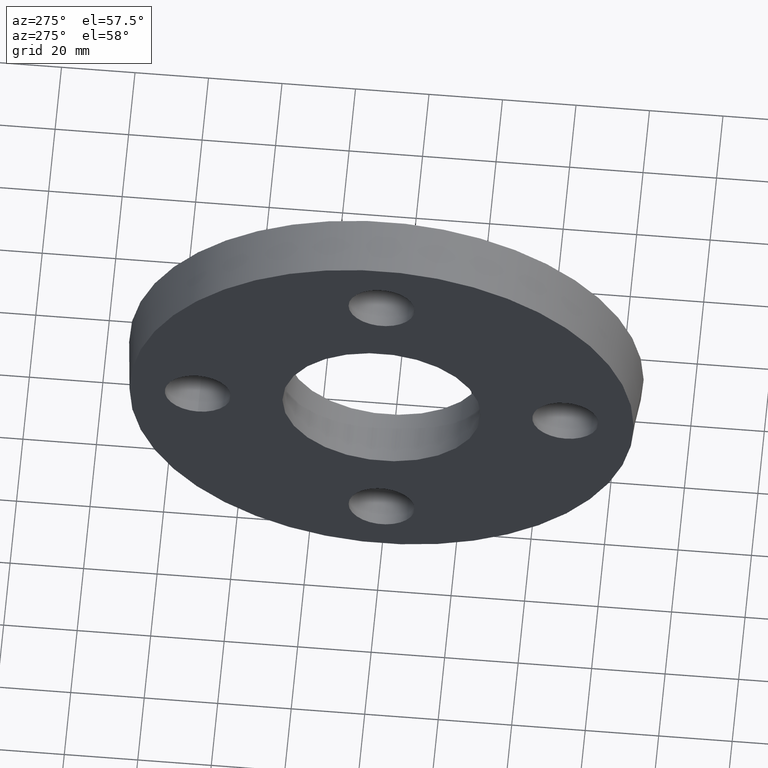
[diagram: clean part render]
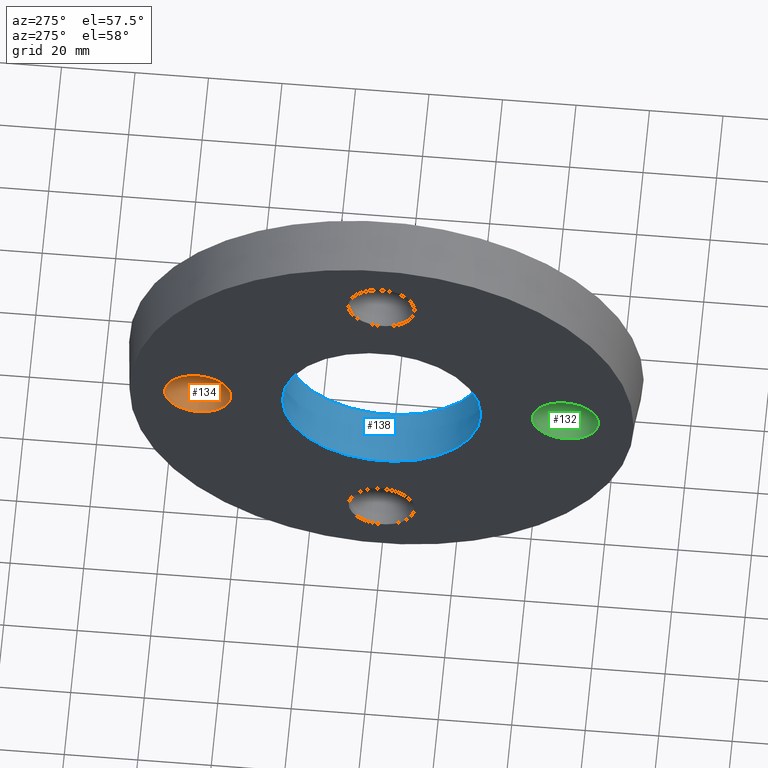
[diagram: same view with three faces highlighted in distinct colors, each labeled with its STEP entity id]
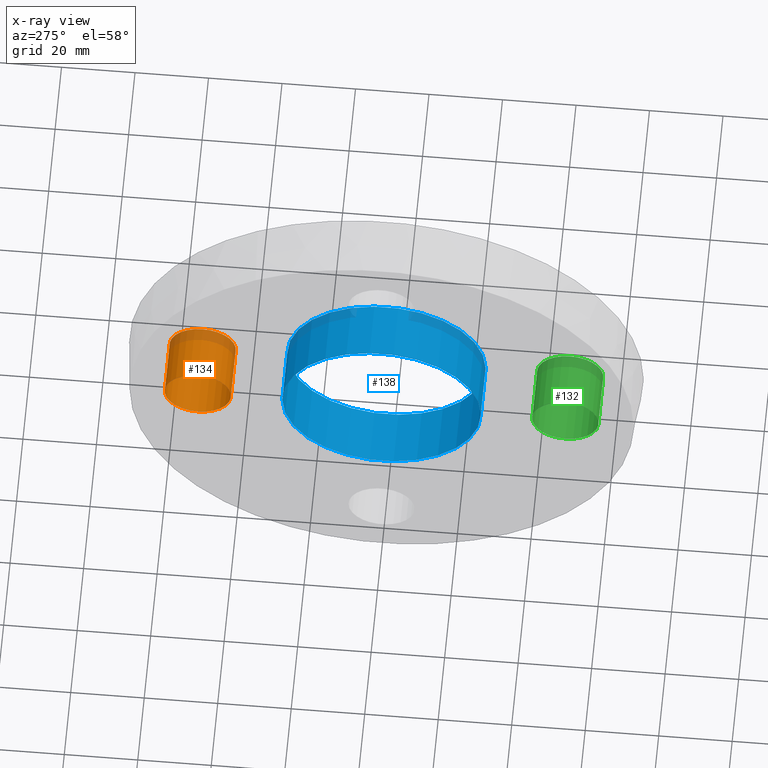
[diagram: x-ray of the same camera — body ghosted, the three highlighted faces saturated]
A machine part, auxiliary view with three faces highlighted in distinct colors.
The next image is the same camera in x-ray (body ghosted, the three faces saturated) — at least one of them is partly hidden behind the body in this view.
Their STEP definitions:

[orange] entity #134 — the highlighted cylindrical surface (bore or boss wall) has radius 9 mm, axis along (-1, 0, 0).
#21=FACE_BOUND('',#49,.T.);
#37=FACE_OUTER_BOUND('',#48,.T.);
#48=EDGE_LOOP('',(#108));
#49=EDGE_LOOP('',(#109));
#72=CIRCLE('',#151,9.);
#73=CIRCLE('',#152,9.);
#84=VERTEX_POINT('',#220);
#85=VERTEX_POINT('',#222);
#96=EDGE_CURVE('',#84,#84,#72,.T.);
#97=EDGE_CURVE('',#85,#85,#73,.T.);
#108=ORIENTED_EDGE('',*,*,#96,.F.);
#109=ORIENTED_EDGE('',*,*,#97,.F.);
#129=CYLINDRICAL_SURFACE('',#150,9.);
#134=ADVANCED_FACE('',(#37,#21),#129,.F.);
#150=AXIS2_PLACEMENT_3D('',#219,#181,#182);
#151=AXIS2_PLACEMENT_3D('',#221,#183,#184);
#152=AXIS2_PLACEMENT_3D('',#223,#185,#186);
#181=DIRECTION('center_axis',(-1.,0.,0.));
#182=DIRECTION('ref_axis',(0.,0.,1.));
#183=DIRECTION('center_axis',(1.,0.,0.));
#184=DIRECTION('ref_axis',(0.,0.,1.));
#185=DIRECTION('center_axis',(-1.,0.,0.));
#186=DIRECTION('ref_axis',(0.,0.,1.));
#219=CARTESIAN_POINT('Origin',(7.5,50.,0.));
#220=CARTESIAN_POINT('',(-7.5,50.,-9.));
#221=CARTESIAN_POINT('Origin',(-7.5,50.,0.));
#222=CARTESIAN_POINT('',(7.5,50.,-9.));
#223=CARTESIAN_POINT('Origin',(7.5,50.,0.));

[blue] entity #138 — the highlighted cylindrical surface (bore or boss wall) has radius 27 mm, axis along (-1, 0, 0).
#33=FACE_BOUND('',#65,.T.);
#41=FACE_OUTER_BOUND('',#64,.T.);
#64=EDGE_LOOP('',(#124));
#65=EDGE_LOOP('',(#125));
#75=CIRCLE('',#155,27.);
#77=CIRCLE('',#159,27.);
#87=VERTEX_POINT('',#227);
#89=VERTEX_POINT('',#233);
#99=EDGE_CURVE('',#87,#87,#75,.T.);
#101=EDGE_CURVE('',#89,#89,#77,.T.);
#124=ORIENTED_EDGE('',*,*,#99,.F.);
#125=ORIENTED_EDGE('',*,*,#101,.T.);
#130=CYLINDRICAL_SURFACE('',#160,27.);
#138=ADVANCED_FACE('',(#41,#33),#130,.F.);
#155=AXIS2_PLACEMENT_3D('',#228,#191,#192);
#159=AXIS2_PLACEMENT_3D('',#234,#199,#200);
#160=AXIS2_PLACEMENT_3D('',#235,#201,#202);
#191=DIRECTION('center_axis',(-1.,0.,0.));
#192=DIRECTION('ref_axis',(0.,0.,1.));
#199=DIRECTION('center_axis',(-1.,0.,0.));
#200=DIRECTION('ref_axis',(0.,0.,1.));
#201=DIRECTION('center_axis',(-1.,0.,0.));
#202=DIRECTION('ref_axis',(0.,-1.,0.));
#227=CARTESIAN_POINT('',(7.5,-27.,0.));
#228=CARTESIAN_POINT('Origin',(7.5,0.,0.));
#233=CARTESIAN_POINT('',(-7.5,-27.,0.));
#234=CARTESIAN_POINT('Origin',(-7.5,0.,0.));
#235=CARTESIAN_POINT('Origin',(0.,0.,0.));

[green] entity #132 — the highlighted cylindrical surface (bore or boss wall) has radius 9 mm, axis along (-1, 0, 0).
#19=FACE_BOUND('',#45,.T.);
#35=FACE_OUTER_BOUND('',#44,.T.);
#44=EDGE_LOOP('',(#104));
#45=EDGE_LOOP('',(#105));
#68=CIRCLE('',#145,9.);
#69=CIRCLE('',#146,9.);
#80=VERTEX_POINT('',#210);
#81=VERTEX_POINT('',#212);
#92=EDGE_CURVE('',#80,#80,#68,.T.);
#93=EDGE_CURVE('',#81,#81,#69,.T.);
#104=ORIENTED_EDGE('',*,*,#92,.F.);
#105=ORIENTED_EDGE('',*,*,#93,.F.);
#127=CYLINDRICAL_SURFACE('',#144,9.);
#132=ADVANCED_FACE('',(#35,#19),#127,.F.);
#144=AXIS2_PLACEMENT_3D('',#209,#169,#170);
#145=AXIS2_PLACEMENT_3D('',#211,#171,#172);
#146=AXIS2_PLACEMENT_3D('',#213,#173,#174);
#169=DIRECTION('center_axis',(-1.,0.,0.));
#170=DIRECTION('ref_axis',(0.,1.22464679914735E-16,-1.));
#171=DIRECTION('center_axis',(1.,0.,0.));
#172=DIRECTION('ref_axis',(0.,1.22464679914735E-16,-1.));
#173=DIRECTION('center_axis',(-1.,0.,0.));
#174=DIRECTION('ref_axis',(0.,1.22464679914735E-16,-1.));
#209=CARTESIAN_POINT('Origin',(7.5,-50.,-6.12323399573677E-15));
#210=CARTESIAN_POINT('',(-7.5,-50.,8.99999999999999));
#211=CARTESIAN_POINT('Origin',(-7.5,-50.,-6.12323399573677E-15));
#212=CARTESIAN_POINT('',(7.5,-50.,8.99999999999999));
#213=CARTESIAN_POINT('Origin',(7.5,-50.,-6.12323399573677E-15));